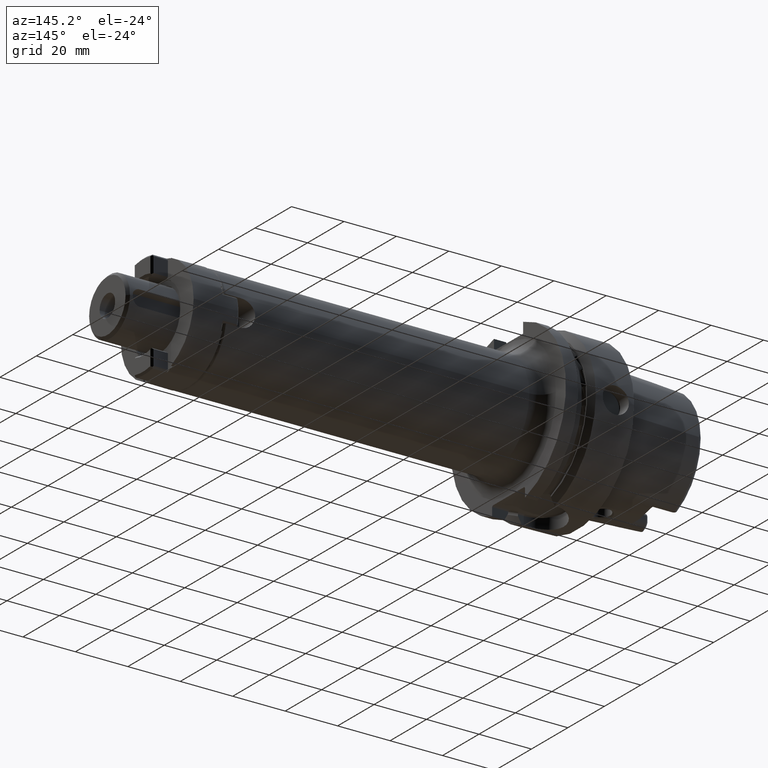
[diagram: clean part render]
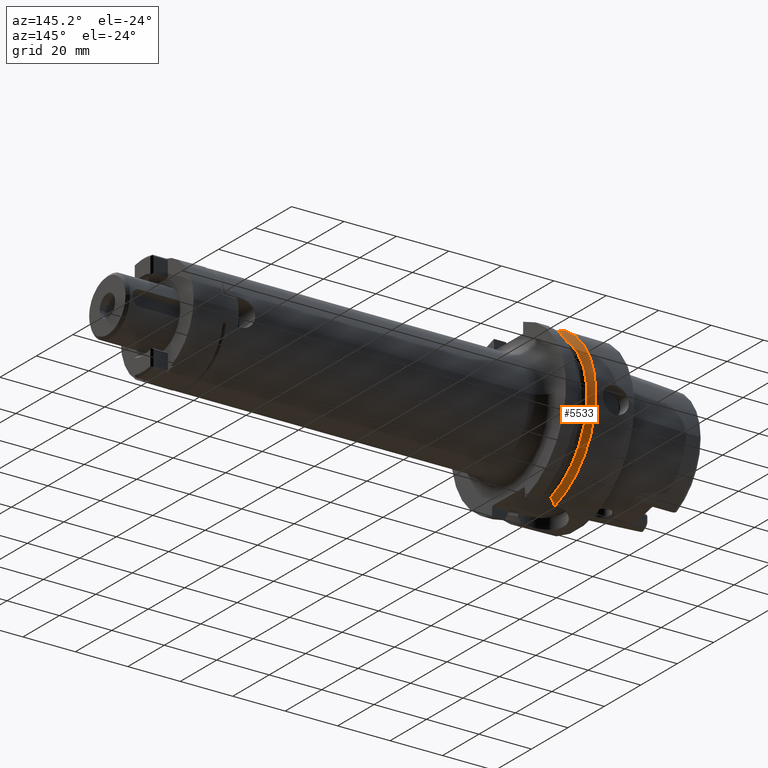
[diagram: same view with one face highlighted and labeled with its STEP entity id]
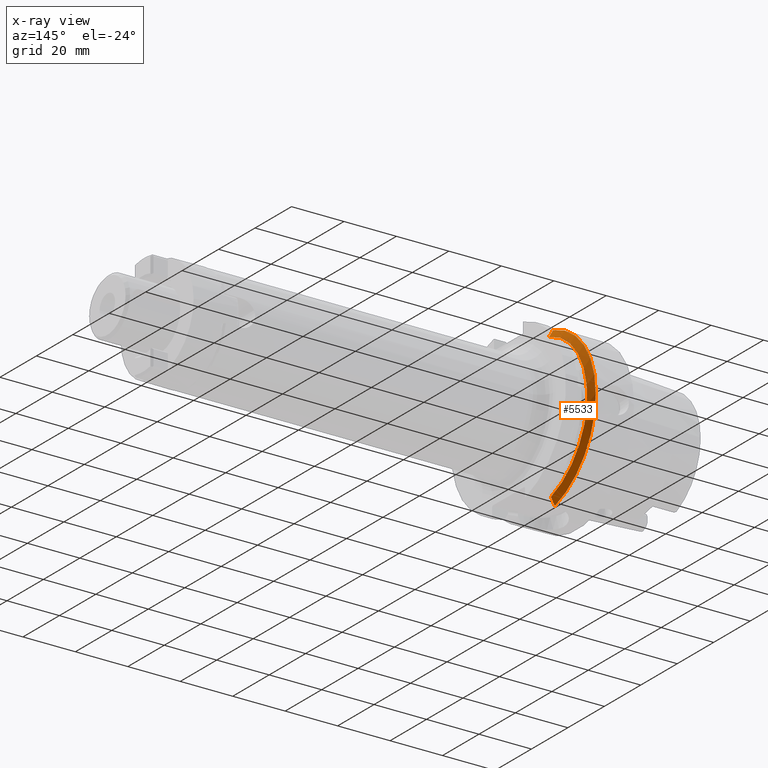
[diagram: x-ray of the same camera — body ghosted, the highlighted face saturated]
A machine part, auxiliary view. The second image highlights one B-rep face of the part: STEP entity #5533.
The next image is the same camera in x-ray: the body ghosted, the highlighted face saturated — about 0% of this face is hidden behind the body in this view.
In plain terms, the highlighted conical surface has half-angle 60 deg.
Its self-contained STEP definition (entity closure, byte-faithful):
#1141=CARTESIAN_POINT('',(1.462250092524E1,0.E0,0.E0));
#1142=DIRECTION('',(1.E0,0.E0,0.E0));
#1143=DIRECTION('',(0.E0,1.E0,0.E0));
#1144=AXIS2_PLACEMENT_3D('',#1141,#1142,#1143);
#1620=CARTESIAN_POINT('',(1.462250092524E1,0.E0,0.E0));
#1621=DIRECTION('',(1.E0,0.E0,0.E0));
#1622=DIRECTION('',(0.E0,2.862698412698E-1,-9.581490374568E-1));
#1623=AXIS2_PLACEMENT_3D('',#1620,#1621,#1622);
#1899=CARTESIAN_POINT('',(1.462250092524E1,9.0175E0,-3.018169467989E1));
#1900=CARTESIAN_POINT('',(1.479739328434E1,9.0175E0,-2.986554088755E1));
#1901=CARTESIAN_POINT('',(1.514187707501E1,9.0175E0,-2.924200119110E1));
#1902=CARTESIAN_POINT('',(1.564249057732E1,9.0175E0,-2.833337204728E1));
#1903=CARTESIAN_POINT('',(1.596590739145E1,9.0175E0,-2.774465116011E1));
#1904=CARTESIAN_POINT('',(1.6125E1,9.0175E0,-2.745461174016E1));
#1906=CARTESIAN_POINT('',(1.6125E1,0.E0,0.E0));
#1907=DIRECTION('',(1.E0,0.E0,0.E0));
#1908=DIRECTION('',(0.E0,3.120501867909E-1,-9.500656192726E-1));
#1909=AXIS2_PLACEMENT_3D('',#1906,#1907,#1908);
#1911=CARTESIAN_POINT('',(1.6125E1,8.0175E0,2.776311772483E1));
#1912=CARTESIAN_POINT('',(1.596543078404E1,8.0175E0,2.805079344433E1));
#1913=CARTESIAN_POINT('',(1.564137691625E1,8.0175E0,2.863431787984E1));
#1914=CARTESIAN_POINT('',(1.514073127837E1,8.0175E0,2.953380309393E1));
#1915=CARTESIAN_POINT('',(1.479690166789E1,8.0175E0,3.015023700722E1));
#1916=CARTESIAN_POINT('',(1.462250092524E1,8.0175E0,3.046259499370E1));
#3203=CARTESIAN_POINT('',(1.462250092524E1,3.15E1,0.E0));
#3204=VERTEX_POINT('',#3203);
#3305=CARTESIAN_POINT('',(1.462250092524E1,8.0175E0,3.046259499370E1));
#3306=VERTEX_POINT('',#3305);
#3311=CARTESIAN_POINT('',(1.6125E1,8.0175E0,2.776311772483E1));
#3313=VERTEX_POINT('',#3311);
#3329=CARTESIAN_POINT('',(1.462250092524E1,9.0175E0,-3.018169467989E1));
#3330=VERTEX_POINT('',#3329);
#3333=CARTESIAN_POINT('',(1.6125E1,9.0175E0,-2.745461174016E1));
#3335=VERTEX_POINT('',#3333);
#5521=CARTESIAN_POINT('',(1.537375046262E1,0.E0,0.E0));
#5522=DIRECTION('',(-1.E0,0.E0,0.E0));
#5523=DIRECTION('',(0.E0,1.E0,0.E0));
#5524=AXIS2_PLACEMENT_3D('',#5521,#5522,#5523);
#5525=CONICAL_SURFACE('',#5524,3.019879763210E1,6.E1);
#5526=ORIENTED_EDGE('',*,*,#4905,.T.);
#5527=ORIENTED_EDGE('',*,*,#5102,.T.);
#5528=ORIENTED_EDGE('',*,*,#5162,.T.);
#5529=ORIENTED_EDGE('',*,*,#4767,.F.);
#5530=ORIENTED_EDGE('',*,*,#5223,.F.);
#5531=EDGE_LOOP('',(#5526,#5527,#5528,#5529,#5530));
#5532=FACE_OUTER_BOUND('',#5531,.F.);
#5533=ADVANCED_FACE('',(#5532),#5525,.T.);
#1145=CIRCLE('',#1144,3.15E1);
#1624=CIRCLE('',#1623,3.15E1);
#1905=B_SPLINE_CURVE_WITH_KNOTS('',3,(#1899,#1900,#1901,#1902,#1903,#1904),
.UNSPECIFIED.,.F.,.F.,(4,1,1,4),(0.E0,3.333333333333E-1,6.666666666667E-1,1.E0),
.UNSPECIFIED.);
#1910=CIRCLE('',#1909,2.889759526419E1);
#1917=B_SPLINE_CURVE_WITH_KNOTS('',3,(#1911,#1912,#1913,#1914,#1915,#1916),
.UNSPECIFIED.,.F.,.F.,(4,1,1,4),(0.E0,3.333333333333E-1,6.666666666667E-1,1.E0),
.UNSPECIFIED.);
#4767=EDGE_CURVE('',#3204,#3306,#1145,.T.);
#4905=EDGE_CURVE('',#3330,#3335,#1905,.T.);
#5102=EDGE_CURVE('',#3335,#3313,#1910,.T.);
#5162=EDGE_CURVE('',#3313,#3306,#1917,.T.);
#5223=EDGE_CURVE('',#3330,#3204,#1624,.T.);